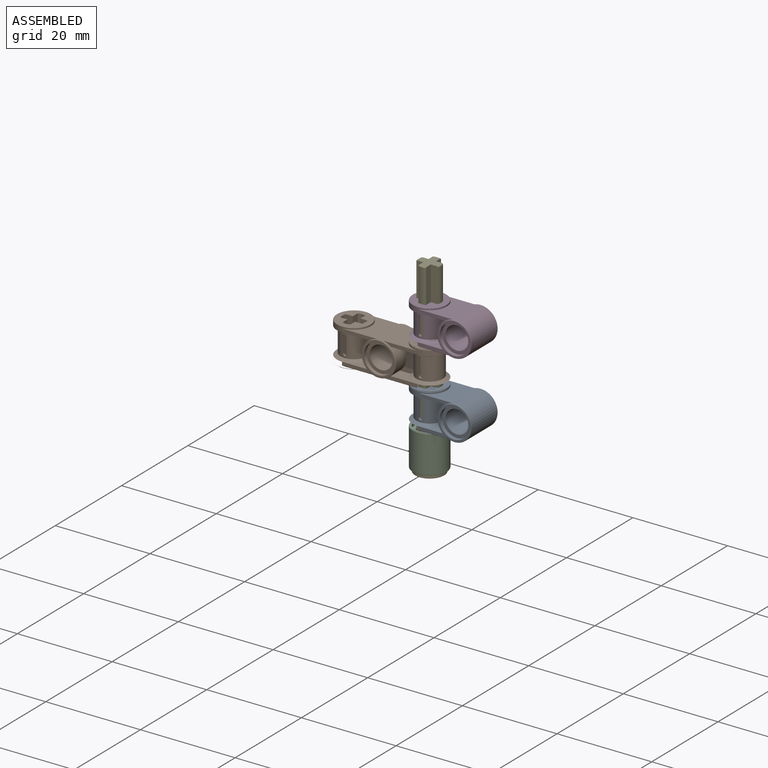
[diagram: assembled view]
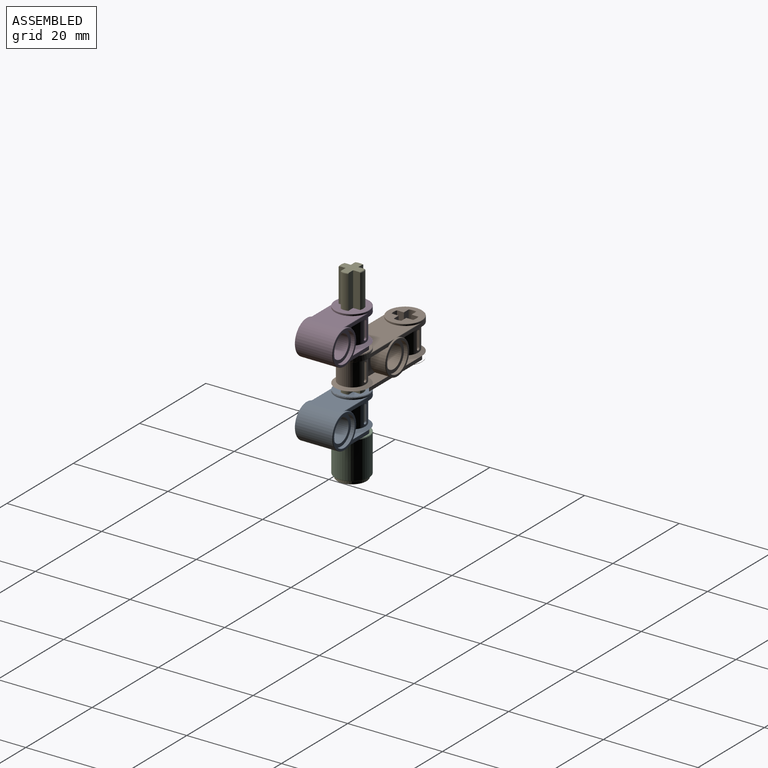
[diagram: assembled view, second angle]
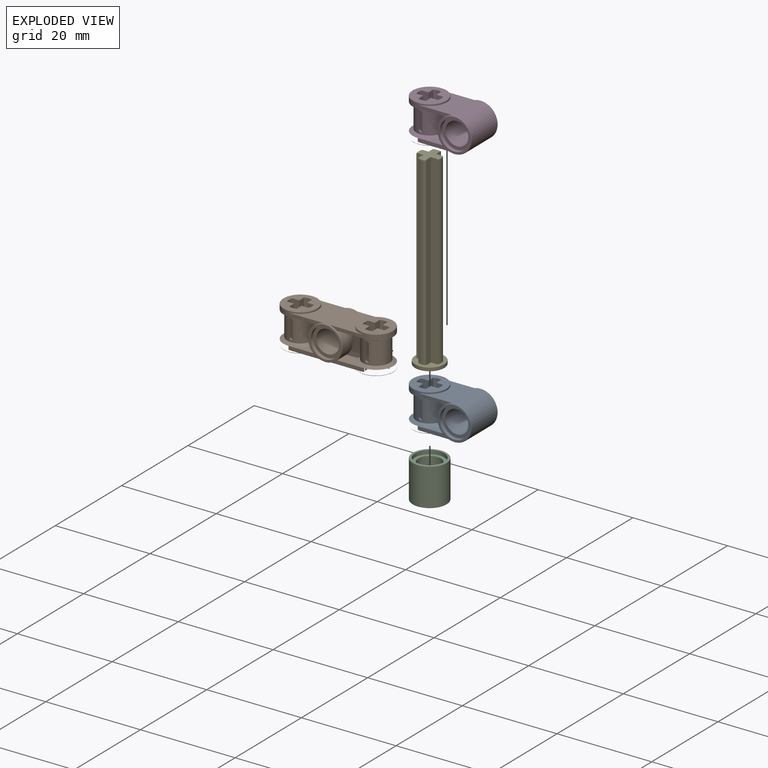
[diagram: exploded view]
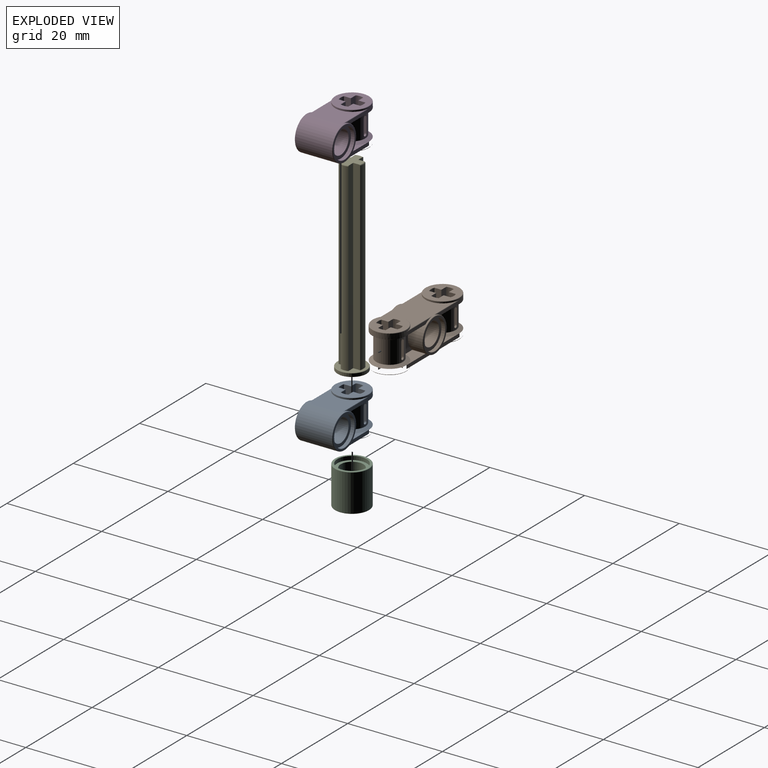
[diagram: exploded view, second angle]
ASSEMBLY  parts=5 mates=4
PART A: 56 faces, bbox 22.4x22.4x30.2 mm
  f0: cylinder r=2.4mm len=6.4mm, axis (0,1,0), area 96.5mm2, adj f1,f2
  f1: plane 6.2x6.2mm, normal (0,1,0), area 12.1mm2, adj f0,f3
  f2: plane 6.2x6.2mm, normal (0,-1,0), area 12.1mm2, adj f0,f4
  f3: cylinder r=3.1mm len=6.2mm, axis (0,1,0), area 15.6mm2, adj f1,f6
  f4: cylinder r=3.1mm len=6.2mm, axis (0,1,0), area 15.6mm2, adj f2,f7
  f5: cylinder r=3.6mm len=7.2mm, axis (1,0,0), area 15.9mm2, adj f8,f9,f11,f12,f13,f14,f15
  f6: plane 7x7mm, normal (0,1,0), area 8.3mm2, adj f3,f17
  f7: plane 7x7mm, normal (0,-1,0), area 8.3mm2, adj f4,f18
  f8: torus R=3.5mm, axis (1,0,0), area 3.5mm2, adj f5,f27
  f9: cone r=3.2mm half-angle=63.4deg, axis (-1,0,0), area 16.5mm2, adj f5,f10,f16,f29,f30,f31
  f10: plane 5.74x2.8mm, normal (1,0,0), area 8.7mm2, adj f9,f11,f31,f35
  f11: plane 7.16x0.7mm, normal (0,1,0), area 4.4mm2, adj f5,f10,f12,f35
  f12: cylinder r=0.1mm len=8mm, axis (0,0,1), area 1.1mm2, adj f5,f11,f13,f35
  f13: plane 7.16x7mm, normal (-1,0,0), area 35.8mm2, adj f5,f12,f14,f35
  f14: cylinder r=0.1mm len=8mm, axis (0,0,1), area 1.1mm2, adj f5,f13,f15,f35
  f15: plane 7.16x0.7mm, normal (0,-1,0), area 4.4mm2, adj f5,f14,f16,f35
  f16: plane 5.74x2.8mm, normal (1,0,0), area 8.7mm2, adj f9,f15,f29,f35
  f17: torus R=3.5mm, axis (0,1,0), area 3.5mm2, adj f6,f35
  f18: torus R=3.5mm, axis (0,-1,0), area 3.5mm2, adj f7,f35
  f19: plane 3.2x0.41mm, normal (0,0,-1), area 1.3mm2, adj f20,f22,f30,f38
  f20: cylinder r=0.4mm len=0.8mm, axis (0,1,0), area 0.5mm2, adj f19,f21,f30,f38
  f21: plane 3.2x0.41mm, normal (0,0,1), area 1.3mm2, adj f20,f22,f30,f38
  f22: cylinder r=0.4mm len=0.8mm, axis (0,1,0), area 0.5mm2, adj f19,f21,f30,f38
  f23: plane 3.2x0.41mm, normal (0,0,1), area 1.3mm2, adj f24,f26,f30,f44
  f24: cylinder r=0.4mm len=0.8mm, axis (0,1,0), area 0.5mm2, adj f23,f25,f30,f44
  f25: plane 3.2x0.41mm, normal (0,0,-1), area 1.3mm2, adj f24,f26,f30,f44
  f26: cylinder r=0.4mm len=0.8mm, axis (0,1,0), area 0.5mm2, adj f23,f25,f30,f44
  f27: plane 7x7mm, normal (-1,0,0), area 26mm2, adj f8,f36,f37,f38,f39,f40,f41,f42
  f28: plane 7.16x0.7mm, normal (0,-1,0), area 4.4mm2, adj f32,f34,f35,f54
  f29: plane 5.63x3.08mm, normal (0,-1,0), area 11.6mm2, adj f9,f16,f30,f32,f35,f48
  f30: cylinder r=2.8mm len=5.6mm, axis (1,0,0), area 70.5mm2, adj f9,f19,f20,f21,f22,f23,f24,f25
  f31: plane 5.63x3.08mm, normal (0,1,0), area 11.6mm2, adj f9,f10,f30,f33,f35,f48
  f32: plane 5.74x2.8mm, normal (-1,0,0), area 8.7mm2, adj f28,f29,f35,f48
  f33: plane 5.74x2.8mm, normal (-1,0,0), area 8.7mm2, adj f31,f35,f48,f49
  f34: cylinder r=0.1mm len=8mm, axis (0,0,1), area 1.1mm2, adj f28,f35,f51,f54
  f35: cylinder r=3.6mm len=7.8mm, axis (0,1,0), area 131.1mm2, adj f10,f11,f12,f13,f14,f15,f16,f17
  f36: plane 8x1.46mm, normal (0,-1,0), area 11.7mm2, adj f27,f37,f47,f52
  f37: plane 8x1.46mm, normal (0,0,-1), area 11.7mm2, adj f27,f36,f38,f52
  f38: cylinder r=2.4mm len=8mm, axis (-1,0,0), area 10mm2, adj f19,f20,f21,f22,f27,f37,f39,f52
  f39: plane 8x1.46mm, normal (0,0,1), area 11.7mm2, adj f27,f38,f40,f52
  f40: plane 8x1.46mm, normal (0,-1,0), area 11.7mm2, adj f27,f39,f41,f52
  f41: cylinder r=2.4mm len=8mm, axis (-1,0,0), area 13mm2, adj f27,f40,f42,f52
  f42: plane 8x1.46mm, normal (0,1,0), area 11.7mm2, adj f27,f41,f43,f52
  f43: plane 8x1.46mm, normal (0,0,1), area 11.7mm2, adj f27,f42,f44,f52
  f44: cylinder r=2.4mm len=8mm, axis (-1,0,0), area 10mm2, adj f23,f24,f25,f26,f27,f43,f45,f52
  f45: plane 8x1.46mm, normal (0,0,-1), area 11.7mm2, adj f27,f44,f46,f52
  f46: plane 8x1.46mm, normal (0,1,0), area 11.7mm2, adj f27,f45,f47,f52
  f47: cylinder r=2.4mm len=8mm, axis (-1,0,0), area 13mm2, adj f27,f36,f46,f52
  f48: cone r=3.2mm half-angle=63.4deg, axis (1,0,0), area 16.5mm2, adj f29,f30,f31,f32,f33,f54
  f49: plane 21.56x15.1mm, normal (0,1,0), area 4.4mm2, adj f33,f35,f50,f54
  f50: cylinder r=0.1mm len=8mm, axis (0,0,1), area 1.1mm2, adj f35,f49,f51,f54
  f51: plane 7.16x7mm, normal (1,0,0), area 35.8mm2, adj f34,f35,f50,f54
  f52: plane 7x7mm, normal (1,0,0), area 26mm2, adj f36,f37,f38,f39,f40,f41,f42,f43
  f53: cylinder r=3.6mm len=3.6mm, axis (1,0,0), area 0mm2, adj f55
  f54: cylinder r=3.6mm len=7.2mm, axis (1,0,0), area 3.5mm2, adj f28,f34,f48,f49,f50,f51
  f55: torus R=3.5mm, axis (1,0,0), area 3.5mm2, adj f52,f53
PART B: 111 faces, bbox 22.4x22.4x38.2 mm
  f0: cylinder r=0.1mm len=7.16mm, axis (0,0,1), area 1.1mm2, adj f1,f2,f3,f4,f5
  f1: plane 7.14x0.7mm, normal (0,1,0), area 4.4mm2, adj f0,f2,f5,f6,f7
  f2: cone r=0.03mm half-angle=5.6deg, axis (-0.1,-0.13,-0.99), area 0mm2, adj f0,f1,f7
  f3: cone r=0.03mm half-angle=5.6deg, axis (-0.1,-0.13,-0.99), area 0.1mm2, adj f0,f4,f7
  f4: plane 14.39x7.27mm, normal (1,0,0), area 71.6mm2, adj f0,f3,f5,f8,f9,f10,f11,f12
  f5: cylinder r=3.6mm len=7.2mm, axis (1,0,0), area 3.5mm2, adj f0,f1,f4,f10,f15,f16
  f6: plane 5.74x2.8mm, normal (-1,0,0), area 8.7mm2, adj f1,f7,f16,f17
  f7: cylinder r=3.6mm len=7.2mm, axis (0,1,0), area 42.8mm2, adj f1,f2,f3,f6,f11,f17,f18,f19
  f8: cone r=0.03mm half-angle=5.6deg, axis (-0.1,0.13,0.99), area 0.1mm2, adj f4,f14,f28
  f9: bspline ~0.84x0.1mm, area 0mm2, adj f4,f10,f28
  f10: cylinder r=0.1mm len=7.16mm, axis (0,0,1), area 1.1mm2, adj f4,f5,f9,f15
  f11: bspline ~0.84x0.1mm, area 0mm2, adj f4,f7,f12
  f12: cylinder r=0.1mm len=7.16mm, axis (0,0,-1), area 1.1mm2, adj f4,f11,f13,f25
  f13: cylinder r=3.6mm len=7.2mm, axis (1,0,0), area 5mm2, adj f4,f12,f14,f25,f29,f30
  f14: cylinder r=0.1mm len=7.16mm, axis (0,0,-1), area 1.1mm2, adj f4,f8,f13,f29,f31
  f15: plane 21.56x15.1mm, normal (0,-1,0), area 4.4mm2, adj f5,f10,f28,f32
  f16: cone r=3.2mm half-angle=63.4deg, axis (1,0,0), area 16.5mm2, adj f5,f6,f17,f32,f33,f34
  f17: plane 5.63x3.08mm, normal (0,1,0), area 11.6mm2, adj f6,f7,f16,f26,f34,f35
  f18: bspline ~0.84x0.1mm, area 0mm2, adj f7,f36,f37
  f19: cone r=0.03mm half-angle=5.6deg, axis (0.1,-0.13,0.99), area 0.1mm2, adj f7,f36,f38
  f20: plane 7.16x0.7mm, normal (0,1,0), area 4.4mm2, adj f7,f21,f38,f39
  f21: plane 5.74x2.8mm, normal (1,0,0), area 8.7mm2, adj f7,f20,f22,f40
  f22: plane 5.63x3.08mm, normal (0,1,0), area 11.6mm2, adj f7,f21,f24,f30,f40,f41
  f23: torus R=3.5mm, axis (0,1,0), area 3.5mm2, adj f7,f42
  f24: plane 5.74x2.8mm, normal (-1,0,0), area 8.7mm2, adj f7,f22,f25,f30
  f25: plane 21.56x15.1mm, normal (0,1,0), area 4.4mm2, adj f7,f12,f13,f24
  f26: plane 5.74x2.8mm, normal (1,0,0), area 8.7mm2, adj f7,f17,f27,f35
  f27: plane 7.16x0.7mm, normal (0,1,0), area 4.4mm2, adj f7,f26,f37,f43
  f28: cylinder r=3.6mm len=7.2mm, axis (0,1,0), area 42.7mm2, adj f8,f9,f15,f29,f31,f32,f33,f44
  f29: plane 7.14x0.7mm, normal (0,-1,0), area 4.4mm2, adj f13,f14,f28,f31,f48
  f30: cone r=3.2mm half-angle=63.4deg, axis (1,0,0), area 16.5mm2, adj f13,f22,f24,f41,f48,f49
  f31: cone r=0.03mm half-angle=5.6deg, axis (-0.1,0.13,0.99), area 0mm2, adj f14,f28,f29
  f32: plane 5.74x2.8mm, normal (-1,0,0), area 8.7mm2, adj f15,f16,f28,f33
  f33: plane 5.63x3.08mm, normal (0,-1,0), area 11.6mm2, adj f16,f28,f32,f34,f35,f47
  f34: cylinder r=2.8mm len=5.6mm, axis (1,0,0), area 71.5mm2, adj f16,f17,f33,f35,f53,f54,f55,f56
  f35: cone r=3.2mm half-angle=63.4deg, axis (-1,0,0), area 16.5mm2, adj f17,f26,f33,f34,f43,f47
  f36: plane 14.39x7.27mm, normal (-1,0,0), area 71.6mm2, adj f18,f19,f37,f38,f39,f43,f44,f45
  f37: cylinder r=0.1mm len=7.16mm, axis (0,0,1), area 1.1mm2, adj f18,f27,f36,f43
  f38: cylinder r=0.1mm len=7.16mm, axis (0,0,-1), area 1.1mm2, adj f19,f20,f36,f39
  f39: cylinder r=3.6mm len=7.2mm, axis (1,0,0), area 15.9mm2, adj f20,f36,f38,f40,f52,f62,f63
  f40: cone r=3.2mm half-angle=63.4deg, axis (-1,0,0), area 16.5mm2, adj f21,f22,f39,f41,f49,f51
  f41: cylinder r=2.8mm len=5.6mm, axis (1,0,0), area 71.5mm2, adj f22,f30,f40,f49,f64,f65,f66,f67
  f42: plane 7x7mm, normal (0,1,0), area 8.3mm2, adj f23,f72
  f43: cylinder r=3.6mm len=7.2mm, axis (1,0,0), area 15.9mm2, adj f27,f35,f36,f37,f46,f61,f73
  f44: bspline ~0.84x0.1mm, area 0.1mm2, adj f28,f36,f62
  f45: cone r=0.03mm half-angle=5.6deg, axis (0.1,0.13,-0.99), area 0.1mm2, adj f28,f36,f61
  f46: plane 7.16x0.7mm, normal (0,-1,0), area 4.4mm2, adj f28,f43,f47,f61
  f47: plane 5.74x2.8mm, normal (1,0,0), area 8.7mm2, adj f28,f33,f35,f46
  f48: plane 5.74x2.8mm, normal (-1,0,0), area 8.7mm2, adj f28,f29,f30,f49
  f49: plane 5.63x3.08mm, normal (0,-1,0), area 11.6mm2, adj f28,f30,f40,f41,f48,f51
  f50: torus R=3.5mm, axis (0,-1,0), area 3.5mm2, adj f28,f74
  f51: plane 5.74x2.8mm, normal (1,0,0), area 8.7mm2, adj f28,f40,f49,f52
  f52: plane 7.16x0.7mm, normal (0,-1,0), area 4.4mm2, adj f28,f39,f51,f62
  f53: cylinder r=0.4mm len=0.8mm, axis (0,1,0), area 0.5mm2, adj f34,f54,f56,f75
  f54: plane 3.2x0.41mm, normal (0,0,1), area 1.3mm2, adj f34,f53,f55,f75
  f55: cylinder r=0.4mm len=0.8mm, axis (0,1,0), area 0.5mm2, adj f34,f54,f56,f75
  f56: plane 3.2x0.41mm, normal (0,0,-1), area 1.3mm2, adj f34,f53,f55,f75
  f57: cylinder r=0.4mm len=0.8mm, axis (0,1,0), area 0.5mm2, adj f34,f58,f60,f76
  f58: plane 3.2x0.41mm, normal (0,0,-1), area 1.3mm2, adj f34,f57,f59,f76
  f59: cylinder r=0.4mm len=0.8mm, axis (0,1,0), area 0.5mm2, adj f34,f58,f60,f76
  f60: plane 3.2x0.41mm, normal (0,0,1), area 1.3mm2, adj f34,f57,f59,f76
  f61: cylinder r=0.1mm len=7.16mm, axis (0,0,1), area 1.1mm2, adj f36,f43,f45,f46
  f62: cylinder r=0.1mm len=7.16mm, axis (0,0,-1), area 1.1mm2, adj f36,f39,f44,f52
  f63: torus R=3.5mm, axis (-1,0,0), area 3.5mm2, adj f39,f77
  f64: plane 3.2x0.41mm, normal (0,0,-1), area 1.3mm2, adj f41,f65,f67,f78
  f65: cylinder r=0.4mm len=0.8mm, axis (0,1,0), area 0.5mm2, adj f41,f64,f66,f78
  f66: plane 3.2x0.41mm, normal (0,0,1), area 1.3mm2, adj f41,f65,f67,f78
  f67: cylinder r=0.4mm len=0.8mm, axis (0,1,0), area 0.5mm2, adj f41,f64,f66,f78
  f68: cylinder r=0.4mm len=0.8mm, axis (0,1,0), area 0.5mm2, adj f41,f69,f71,f79
  f69: plane 3.2x0.41mm, normal (0,0,1), area 1.3mm2, adj f41,f68,f70,f79
  f70: cylinder r=0.4mm len=0.8mm, axis (0,1,0), area 0.5mm2, adj f41,f69,f71,f79
  f71: plane 3.2x0.41mm, normal (0,0,-1), area 1.3mm2, adj f41,f68,f70,f79
  f72: cylinder r=3.1mm len=6.2mm, axis (0,1,0), area 15.6mm2, adj f42,f80
  f73: torus R=3.5mm, axis (1,0,0), area 3.5mm2, adj f43,f81
  f74: plane 7x7mm, normal (0,-1,0), area 8.3mm2, adj f50,f82
  f75: cylinder r=2.4mm len=8mm, axis (-1,0,0), area 10.5mm2, adj f53,f54,f55,f56,f81,f83,f84,f85
  f76: cylinder r=2.4mm len=8mm, axis (-1,0,0), area 10.5mm2, adj f57,f58,f59,f60,f81,f84,f86,f87
  f77: plane 7x7mm, normal (-1,0,0), area 26mm2, adj f63,f78,f79,f88,f89,f90,f91,f92
  f78: cylinder r=2.4mm len=8mm, axis (-1,0,0), area 10.5mm2, adj f64,f65,f66,f67,f77,f90,f91,f98
  f79: cylinder r=2.4mm len=8mm, axis (-1,0,0), area 10.5mm2, adj f68,f69,f70,f71,f77,f95,f96,f98
  f80: plane 6.2x6.2mm, normal (0,1,0), area 12.1mm2, adj f72,f99
  f81: plane 7x7mm, normal (-1,0,0), area 26mm2, adj f73,f75,f76,f83,f85,f86,f87,f100
  f82: cylinder r=3.1mm len=6.2mm, axis (0,1,0), area 15.6mm2, adj f74,f106
  f83: plane 8x1.46mm, normal (0,0,-1), area 11.7mm2, adj f75,f81,f84,f102
  f84: plane 7x7mm, normal (1,0,0), area 26mm2, adj f75,f76,f83,f85,f86,f87,f100,f101
  f85: plane 8x1.46mm, normal (0,0,1), area 11.7mm2, adj f75,f81,f84,f103
  f86: plane 8x1.46mm, normal (0,0,1), area 11.7mm2, adj f76,f81,f84,f105
  f87: plane 8x1.46mm, normal (0,0,-1), area 11.7mm2, adj f76,f81,f84,f100
  f88: cylinder r=2.4mm len=8mm, axis (-1,0,0), area 13mm2, adj f77,f89,f97,f98
  f89: plane 8x1.46mm, normal (0,-1,0), area 11.7mm2, adj f77,f88,f90,f98
  f90: plane 8x1.46mm, normal (0,0,1), area 11.7mm2, adj f77,f78,f89,f98
  f91: plane 8x1.46mm, normal (0,0,-1), area 11.7mm2, adj f77,f78,f92,f98
  f92: plane 8x1.46mm, normal (0,-1,0), area 11.7mm2, adj f77,f91,f93,f98
  f93: cylinder r=2.4mm len=8mm, axis (-1,0,0), area 13mm2, adj f77,f92,f94,f98
  f94: plane 8x1.46mm, normal (0,1,0), area 11.7mm2, adj f77,f93,f95,f98
  f95: plane 8x1.46mm, normal (0,0,-1), area 11.7mm2, adj f77,f79,f94,f98
  f96: plane 8x1.46mm, normal (0,0,1), area 11.7mm2, adj f77,f79,f97,f98
  f97: plane 8x1.46mm, normal (0,1,0), area 11.7mm2, adj f77,f88,f96,f98
  f98: plane 7x7mm, normal (1,0,0), area 26mm2, adj f78,f79,f88,f89,f90,f91,f92,f93
  f99: cylinder r=2.4mm len=6.4mm, axis (0,1,0), area 96.5mm2, adj f80,f106
  f100: plane 8x1.46mm, normal (0,-1,0), area 11.7mm2, adj f81,f84,f87,f101
  f101: cylinder r=2.4mm len=8mm, axis (-1,0,0), area 13mm2, adj f81,f84,f100,f102
  f102: plane 8x1.46mm, normal (0,1,0), area 11.7mm2, adj f81,f83,f84,f101
  f103: plane 8x1.46mm, normal (0,1,0), area 11.7mm2, adj f81,f84,f85,f104
  f104: cylinder r=2.4mm len=8mm, axis (-1,0,0), area 13mm2, adj f81,f84,f103,f105
  f105: plane 8x1.46mm, normal (0,-1,0), area 11.7mm2, adj f81,f84,f86,f104
  f106: plane 6.2x6.2mm, normal (0,-1,0), area 12.1mm2, adj f82,f99
  f107: torus R=3.5mm, axis (1,0,0), area 3.5mm2, adj f84,f109
  f108: torus R=3.5mm, axis (-1,0,0), area 3.5mm2, adj f98,f110
  f109: cylinder r=3.6mm len=3.6mm, axis (1,0,0), area 0mm2, adj f107
  f110: cylinder r=3.6mm len=3.6mm, axis (1,0,0), area 0mm2, adj f108
PART C: 10 faces, bbox 7.8x8x7.8 mm
  f0: plane 6.2x6.2mm, normal (0,1,0), area 12.1mm2, adj f1,f2
  f1: cylinder r=2.4mm len=6.4mm, axis (0,-1,0), area 96.5mm2, adj f0,f3
  f2: cylinder r=3.1mm len=6.2mm, axis (0,-1,0), area 15.6mm2, adj f0,f4
  f3: plane 6.2x6.2mm, normal (0,-1,0), area 12.1mm2, adj f1,f5
  f4: plane 7x7mm, normal (0,1,0), area 8.3mm2, adj f2,f6
  f5: cylinder r=3.1mm len=6.2mm, axis (0,-1,0), area 15.6mm2, adj f3,f7
  f6: torus R=3.5mm, axis (0,-1,0), area 3.5mm2, adj f4,f8
  f7: plane 7x7mm, normal (0,-1,0), area 8.3mm2, adj f5,f9
  f8: cylinder r=3.6mm len=7.8mm, axis (0,-1,0), area 176.4mm2, adj f6,f9
  f9: torus R=3.5mm, axis (0,-1,0), area 3.5mm2, adj f7,f8
PART D: same geometry as A
PART E: 22 faces, bbox 6.7x6.7x40 mm
  f0: torus R=2.2mm, axis (0,0,1), area 0.5mm2, adj f4,f7,f8,f9
  f1: torus R=2.2mm, axis (0,0,1), area 0.5mm2, adj f4,f10,f11,f12
  f2: torus R=2.2mm, axis (0,0,1), area 0.5mm2, adj f4,f13,f14,f15
  f3: torus R=2.2mm, axis (0,0,1), area 0.5mm2, adj f4,f5,f6,f16
  f4: plane 4.4x4.4mm, normal (0,0,1), area 11.2mm2, adj f0,f1,f2,f3,f6,f7,f9,f10
  f5: cylinder r=2.4mm len=39mm, axis (0,0,1), area 63.6mm2, adj f3,f6,f16,f17
  f6: plane 39.23x1.5mm, normal (1,0,0), area 57.3mm2, adj f3,f4,f5,f7,f17
  f7: plane 39.23x1.5mm, normal (0,1,0), area 57.3mm2, adj f0,f4,f6,f8,f17
  f8: cylinder r=2.4mm len=39mm, axis (0,0,1), area 63.6mm2, adj f0,f7,f9,f17
  f9: plane 39.23x1.5mm, normal (0,-1,0), area 57.3mm2, adj f0,f4,f8,f10,f17
  f10: plane 39.23x1.5mm, normal (1,0,0), area 57.3mm2, adj f1,f4,f9,f11,f17
  f11: cylinder r=2.4mm len=39mm, axis (0,0,1), area 63.6mm2, adj f1,f10,f12,f17
  f12: plane 39.23x1.5mm, normal (-1,0,0), area 57.3mm2, adj f1,f4,f11,f13,f17
  f13: plane 39.23x1.5mm, normal (0,-1,0), area 57.3mm2, adj f2,f4,f12,f14,f17
  f14: cylinder r=2.4mm len=39mm, axis (0,0,1), area 63.6mm2, adj f2,f13,f15,f17
  f15: plane 39.23x1.5mm, normal (0,1,0), area 57.3mm2, adj f2,f4,f14,f16,f17
  f16: plane 39.23x1.5mm, normal (-1,0,0), area 57.3mm2, adj f3,f4,f5,f15,f17
  f17: plane 6x6mm, normal (0,0,1), area 15.8mm2, adj f5,f6,f7,f8,f9,f10,f11,f12
  f18: torus R=3mm, axis (0,0,1), area 3mm2, adj f17,f19
  f19: cylinder r=3.1mm len=6.2mm, axis (0,0,1), area 11.7mm2, adj f18,f21
  f20: plane 6x6mm, normal (0,0,-1), area 28.3mm2, adj f21
  f21: torus R=3mm, axis (0,0,1), area 3mm2, adj f19,f20
PLACE A rot(axis=(0,1,0),90deg) t=(2.94,-2.63,-6.77)mm
PLACE B rot(axis=(0,1,0),90deg) t=(-13.06,-2.63,1.23)mm
PLACE C rot(axis=(1,0,0),90deg) t=(-5.06,-2.63,-14.77)mm
PLACE D rot(axis=(0,1,0),90deg) t=(2.94,-2.63,9.23)mm
PLACE E t=(-5.06,-2.63,0.43)mm fixed
MATE fastened A.f5 <-> B.f13  axis (0,0,1) through (-5.06,-2.63,-2.77)mm
MATE fastened C.f1 <-> A.f5  axis (0,0,1) through (-5.06,-2.63,-10.77)mm
MATE fastened B.f13 <-> D.f5  axis (0,0,1) through (-5.06,-2.63,5.23)mm
MATE fastened E.f2 <-> C.f1  axis (0,0,1) through (-5.06,-2.63,-18.77)mm
